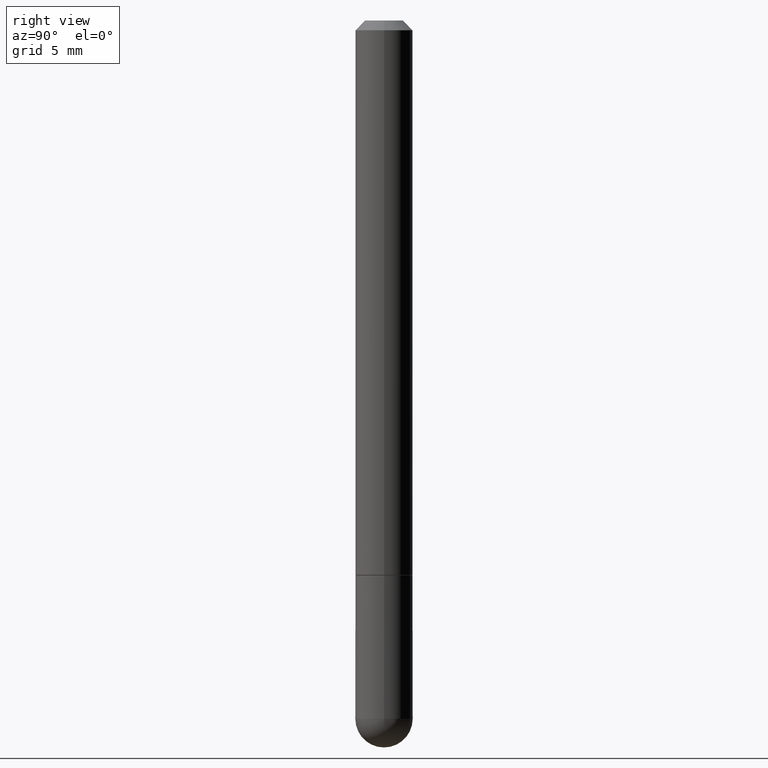
[diagram: clean part render]
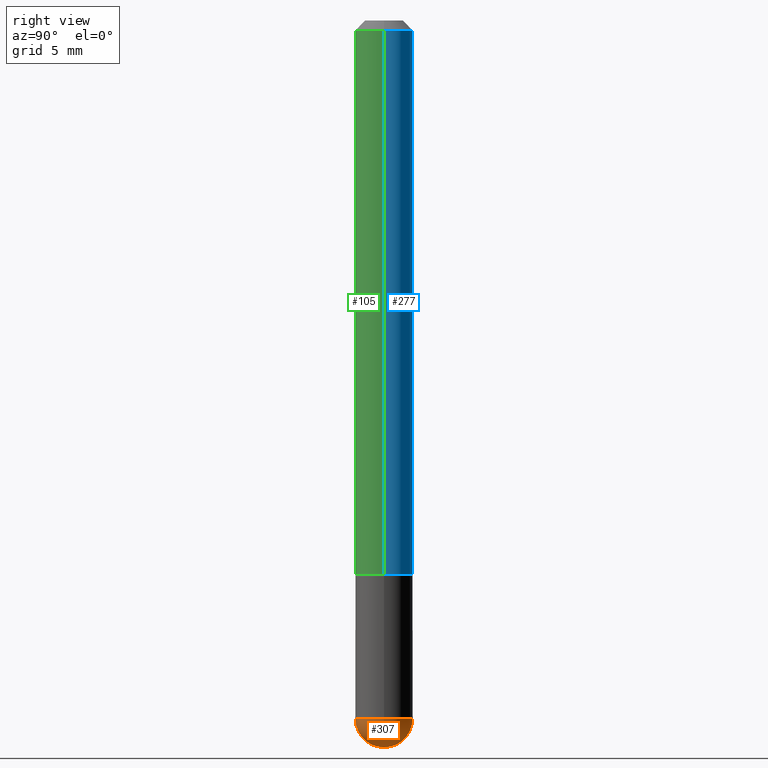
[diagram: same view with three faces highlighted in distinct colors, each labeled with its STEP entity id]
A machine part, right view with three faces highlighted in distinct colors.
Their STEP definitions:

[orange] entity #307 — the highlighted spherical surface has radius 1.4999 mm.
#1 = DIRECTION ( 'NONE',  ( -1.000000000000000000, 7.105427357601001070E-15, -4.926315508542082329E-29 ) ) ;
#8 = DIRECTION ( 'NONE',  ( 1.000000000000000000, -6.982962677686265922E-15, 4.883557194083112340E-29 ) ) ;
#12 = FACE_OUTER_BOUND ( 'NONE', #198, .T. ) ;
#14 = CARTESIAN_POINT ( 'NONE',  ( 3.183141170014464762E-29, -5.491615626124592102E-15, -1.437049999999999939 ) ) ;
#15 = EDGE_CURVE ( 'NONE', #241, #261, #259, .T. ) ;
#24 = AXIS2_PLACEMENT_3D ( 'NONE', #214, #8, #313 ) ;
#35 = CARTESIAN_POINT ( 'NONE',  ( 0.05905000000000001914, -4.914347271455197089E-15, -1.437049999999999939 ) ) ;
#43 = CIRCLE ( 'NONE', #24, 0.05905000000000025506 ) ;
#56 = CARTESIAN_POINT ( 'NONE',  ( 3.514260947928350449E-29, -5.017433257984542594E-15, -1.437049999999999939 ) ) ;
#58 = AXIS2_PLACEMENT_3D ( 'NONE', #249, #1, #189 ) ;
#84 = DIRECTION ( 'NONE',  ( -1.000000000000000000, 6.982962677686265922E-15, -4.883557194083112340E-29 ) ) ;
#89 = DIRECTION ( 'NONE',  ( 1.000000000000000000, -6.982962677686272233E-15, 0.000000000000000000 ) ) ;
#104 = DIRECTION ( 'NONE',  ( -2.445468806185136597E-29, 3.491481338843145583E-15, 1.000000000000000000 ) ) ;
#114 = ORIENTED_EDGE ( 'NONE', *, *, #15, .F. ) ;
#115 = VERTEX_POINT ( 'NONE', #310 ) ;
#135 = SPHERICAL_SURFACE ( 'NONE', #350, 0.05905000000000025506 ) ;
#147 = CIRCLE ( 'NONE', #215, 0.05905000000000000526 ) ;
#181 = DIRECTION ( 'NONE',  ( -2.445468806185136597E-29, 3.491481338843145583E-15, 1.000000000000000000 ) ) ;
#184 = EDGE_CURVE ( 'NONE', #115, #404, #299, .T. ) ;
#188 = AXIS2_PLACEMENT_3D ( 'NONE', #56, #181, #89 ) ;
#189 = DIRECTION ( 'NONE',  ( -7.105427357601001070E-15, -1.000000000000000000, 0.000000000000000000 ) ) ;
#198 = EDGE_LOOP ( 'NONE', ( #303, #293, #114, #333 ) ) ;
#211 = EDGE_CURVE ( 'NONE', #115, #261, #43, .T. ) ;
#214 = CARTESIAN_POINT ( 'NONE',  ( 3.183141170014464762E-29, -5.491615626124592102E-15, -1.437049999999999939 ) ) ;
#215 = AXIS2_PLACEMENT_3D ( 'NONE', #382, #104, #357 ) ;
#216 = CARTESIAN_POINT ( 'NONE',  ( 4.123439461174083974E-16, 0.05904999999999487742, -1.437050000000000161 ) ) ;
#232 = CARTESIAN_POINT ( 'NONE',  ( -4.195754854663065087E-16, -0.05905000000000538291, -1.437049999999999716 ) ) ;
#241 = VERTEX_POINT ( 'NONE', #35 ) ;
#247 = EDGE_CURVE ( 'NONE', #404, #241, #147, .T. ) ;
#249 = CARTESIAN_POINT ( 'NONE',  ( 3.183141170014464762E-29, -5.491615626124592102E-15, -1.437049999999999939 ) ) ;
#259 = CIRCLE ( 'NONE', #188, 0.05905000000000000526 ) ;
#261 = VERTEX_POINT ( 'NONE', #216 ) ;
#293 = ORIENTED_EDGE ( 'NONE', *, *, #211, .T. ) ;
#299 = CIRCLE ( 'NONE', #58, 0.05905000000000025506 ) ;
#303 = ORIENTED_EDGE ( 'NONE', *, *, #184, .F. ) ;
#307 = ADVANCED_FACE ( 'NONE', ( #12 ), #135, .T. ) ;
#310 = CARTESIAN_POINT ( 'NONE',  ( 3.330070981488499955E-29, -5.694171829508798064E-15, -1.496100000000000207 ) ) ;
#313 = DIRECTION ( 'NONE',  ( 6.982962677686266711E-15, 1.000000000000000000, 0.000000000000000000 ) ) ;
#328 = DIRECTION ( 'NONE',  ( 6.982962677686265922E-15, 1.000000000000000000, -4.626330217890349615E-15 ) ) ;
#333 = ORIENTED_EDGE ( 'NONE', *, *, #247, .F. ) ;
#350 = AXIS2_PLACEMENT_3D ( 'NONE', #14, #84, #328 ) ;
#357 = DIRECTION ( 'NONE',  ( 1.000000000000000000, -6.982962677686272233E-15, 0.000000000000000000 ) ) ;
#382 = CARTESIAN_POINT ( 'NONE',  ( 3.514260947928350449E-29, -5.017433257984542594E-15, -1.437049999999999939 ) ) ;
#404 = VERTEX_POINT ( 'NONE', #232 ) ;

[blue] entity #277 — the highlighted cylindrical surface (edge-blend (fillet) strip) has radius 1.4999 mm, axis along (-0, 0, 1).
#27 = VERTEX_POINT ( 'NONE', #208 ) ;
#40 = CARTESIAN_POINT ( 'NONE',  ( 0.05905000000000007465, -4.123439461173745750E-16, 2.879382386107504074E-30 ) ) ;
#41 = CARTESIAN_POINT ( 'NONE',  ( 0.000000000000000000, 0.000000000000000000, 0.000000000000000000 ) ) ;
#63 = DIRECTION ( 'NONE',  ( 1.000000000000000000, -6.982962677686266711E-15, 4.876176775795936353E-29 ) ) ;
#71 = VECTOR ( 'NONE', #127, 39.37007874015748143 ) ;
#97 = CARTESIAN_POINT ( 'NONE',  ( 2.789790814096003463E-29, -3.983081911352260315E-15, -1.140799999999999814 ) ) ;
#106 = LINE ( 'NONE', #377, #248 ) ;
#122 = CIRCLE ( 'NONE', #174, 0.05905000000000014404 ) ;
#127 = DIRECTION ( 'NONE',  ( -2.445468806185136877E-29, 3.491481338843145188E-15, 1.000000000000000000 ) ) ;
#149 = EDGE_LOOP ( 'NONE', ( #364, #170, #308, #171 ) ) ;
#153 = AXIS2_PLACEMENT_3D ( 'NONE', #169, #201, #297 ) ;
#163 = DIRECTION ( 'NONE',  ( -2.445468806185136597E-29, 3.491481338843145583E-15, 1.000000000000000000 ) ) ;
#168 = EDGE_CURVE ( 'NONE', #206, #27, #351, .T. ) ;
#169 = CARTESIAN_POINT ( 'NONE',  ( 4.890937612370278413E-31, -6.982962677686297772E-17, -0.02000000000000002123 ) ) ;
#170 = ORIENTED_EDGE ( 'NONE', *, *, #234, .T. ) ;
#171 = ORIENTED_EDGE ( 'NONE', *, *, #168, .F. ) ;
#174 = AXIS2_PLACEMENT_3D ( 'NONE', #97, #348, #245 ) ;
#183 = VERTEX_POINT ( 'NONE', #411 ) ;
#201 = DIRECTION ( 'NONE',  ( -2.445468806185136597E-29, 3.491481338843145583E-15, 1.000000000000000000 ) ) ;
#206 = VERTEX_POINT ( 'NONE', #384 ) ;
#208 = CARTESIAN_POINT ( 'NONE',  ( 0.05905000000000000526, -4.749420335452719692E-16, -0.02000000000000002123 ) ) ;
#234 = EDGE_CURVE ( 'NONE', #239, #183, #106, .T. ) ;
#239 = VERTEX_POINT ( 'NONE', #246 ) ;
#245 = DIRECTION ( 'NONE',  ( 1.000000000000000000, -6.982962677686263555E-15, 0.000000000000000000 ) ) ;
#246 = CARTESIAN_POINT ( 'NONE',  ( -0.05905000000000014404, -1.606880283598219355E-15, -1.140799999999999814 ) ) ;
#248 = VECTOR ( 'NONE', #316, 39.37007874015748143 ) ;
#255 = EDGE_CURVE ( 'NONE', #206, #239, #122, .T. ) ;
#273 = CIRCLE ( 'NONE', #153, 0.05905000000000000526 ) ;
#277 = ADVANCED_FACE ( 'NONE', ( #288 ), #322, .T. ) ;
#288 = FACE_OUTER_BOUND ( 'NONE', #149, .T. ) ;
#289 = EDGE_CURVE ( 'NONE', #27, #183, #273, .T. ) ;
#297 = DIRECTION ( 'NONE',  ( 1.000000000000000000, -6.982962677686267499E-15, 0.000000000000000000 ) ) ;
#308 = ORIENTED_EDGE ( 'NONE', *, *, #289, .F. ) ;
#316 = DIRECTION ( 'NONE',  ( -2.445468806185136877E-29, 3.491481338843145188E-15, 1.000000000000000000 ) ) ;
#322 = CYLINDRICAL_SURFACE ( 'NONE', #339, 0.05905000000000007465 ) ;
#339 = AXIS2_PLACEMENT_3D ( 'NONE', #41, #163, #63 ) ;
#348 = DIRECTION ( 'NONE',  ( -2.445468806185136597E-29, 3.491481338843145583E-15, 1.000000000000000000 ) ) ;
#351 = LINE ( 'NONE', #40, #71 ) ;
#364 = ORIENTED_EDGE ( 'NONE', *, *, #255, .T. ) ;
#377 = CARTESIAN_POINT ( 'NONE',  ( -0.05905000000000007465, 4.195754854663396902E-16, -2.904631170795525395E-30 ) ) ;
#384 = CARTESIAN_POINT ( 'NONE',  ( 0.05905000000000014404, -4.395425857469635235E-15, -1.140799999999999814 ) ) ;
#411 = CARTESIAN_POINT ( 'NONE',  ( -0.05905000000000000526, 3.425143193405111289E-16, -0.02000000000000002123 ) ) ;

[green] entity #105 — the highlighted cylindrical surface (edge-blend (fillet) strip) has radius 1.4999 mm, axis along (-0, 0, 1).
#2 = EDGE_CURVE ( 'NONE', #239, #206, #386, .T. ) ;
#23 = DIRECTION ( 'NONE',  ( 1.000000000000000000, -6.982962677686267499E-15, 0.000000000000000000 ) ) ;
#27 = VERTEX_POINT ( 'NONE', #208 ) ;
#28 = DIRECTION ( 'NONE',  ( -2.445468806185136597E-29, 3.491481338843145583E-15, 1.000000000000000000 ) ) ;
#40 = CARTESIAN_POINT ( 'NONE',  ( 0.05905000000000007465, -4.123439461173745750E-16, 2.879382386107504074E-30 ) ) ;
#60 = DIRECTION ( 'NONE',  ( -2.445468806185136597E-29, 3.491481338843145583E-15, 1.000000000000000000 ) ) ;
#61 = DIRECTION ( 'NONE',  ( 1.000000000000000000, -6.982962677686266711E-15, 4.876176775795936353E-29 ) ) ;
#71 = VECTOR ( 'NONE', #127, 39.37007874015748143 ) ;
#75 = ORIENTED_EDGE ( 'NONE', *, *, #168, .T. ) ;
#93 = DIRECTION ( 'NONE',  ( -2.445468806185136597E-29, 3.491481338843145583E-15, 1.000000000000000000 ) ) ;
#98 = EDGE_CURVE ( 'NONE', #183, #27, #363, .T. ) ;
#105 = ADVANCED_FACE ( 'NONE', ( #182 ), #244, .T. ) ;
#106 = LINE ( 'NONE', #377, #248 ) ;
#121 = CARTESIAN_POINT ( 'NONE',  ( 4.890937612370278413E-31, -6.982962677686297772E-17, -0.02000000000000002123 ) ) ;
#127 = DIRECTION ( 'NONE',  ( -2.445468806185136877E-29, 3.491481338843145188E-15, 1.000000000000000000 ) ) ;
#150 = DIRECTION ( 'NONE',  ( 1.000000000000000000, -6.982962677686263555E-15, 0.000000000000000000 ) ) ;
#152 = ORIENTED_EDGE ( 'NONE', *, *, #2, .T. ) ;
#168 = EDGE_CURVE ( 'NONE', #206, #27, #351, .T. ) ;
#180 = AXIS2_PLACEMENT_3D ( 'NONE', #121, #60, #23 ) ;
#182 = FACE_OUTER_BOUND ( 'NONE', #359, .T. ) ;
#183 = VERTEX_POINT ( 'NONE', #411 ) ;
#206 = VERTEX_POINT ( 'NONE', #384 ) ;
#208 = CARTESIAN_POINT ( 'NONE',  ( 0.05905000000000000526, -4.749420335452719692E-16, -0.02000000000000002123 ) ) ;
#234 = EDGE_CURVE ( 'NONE', #239, #183, #106, .T. ) ;
#238 = AXIS2_PLACEMENT_3D ( 'NONE', #374, #93, #61 ) ;
#239 = VERTEX_POINT ( 'NONE', #246 ) ;
#244 = CYLINDRICAL_SURFACE ( 'NONE', #238, 0.05905000000000007465 ) ;
#246 = CARTESIAN_POINT ( 'NONE',  ( -0.05905000000000014404, -1.606880283598219355E-15, -1.140799999999999814 ) ) ;
#248 = VECTOR ( 'NONE', #316, 39.37007874015748143 ) ;
#263 = ORIENTED_EDGE ( 'NONE', *, *, #98, .F. ) ;
#316 = DIRECTION ( 'NONE',  ( -2.445468806185136877E-29, 3.491481338843145188E-15, 1.000000000000000000 ) ) ;
#344 = AXIS2_PLACEMENT_3D ( 'NONE', #372, #28, #150 ) ;
#351 = LINE ( 'NONE', #40, #71 ) ;
#359 = EDGE_LOOP ( 'NONE', ( #399, #152, #75, #263 ) ) ;
#363 = CIRCLE ( 'NONE', #180, 0.05905000000000000526 ) ;
#372 = CARTESIAN_POINT ( 'NONE',  ( 2.789790814096003463E-29, -3.983081911352260315E-15, -1.140799999999999814 ) ) ;
#374 = CARTESIAN_POINT ( 'NONE',  ( 0.000000000000000000, 0.000000000000000000, 0.000000000000000000 ) ) ;
#377 = CARTESIAN_POINT ( 'NONE',  ( -0.05905000000000007465, 4.195754854663396902E-16, -2.904631170795525395E-30 ) ) ;
#384 = CARTESIAN_POINT ( 'NONE',  ( 0.05905000000000014404, -4.395425857469635235E-15, -1.140799999999999814 ) ) ;
#386 = CIRCLE ( 'NONE', #344, 0.05905000000000014404 ) ;
#399 = ORIENTED_EDGE ( 'NONE', *, *, #234, .F. ) ;
#411 = CARTESIAN_POINT ( 'NONE',  ( -0.05905000000000000526, 3.425143193405111289E-16, -0.02000000000000002123 ) ) ;